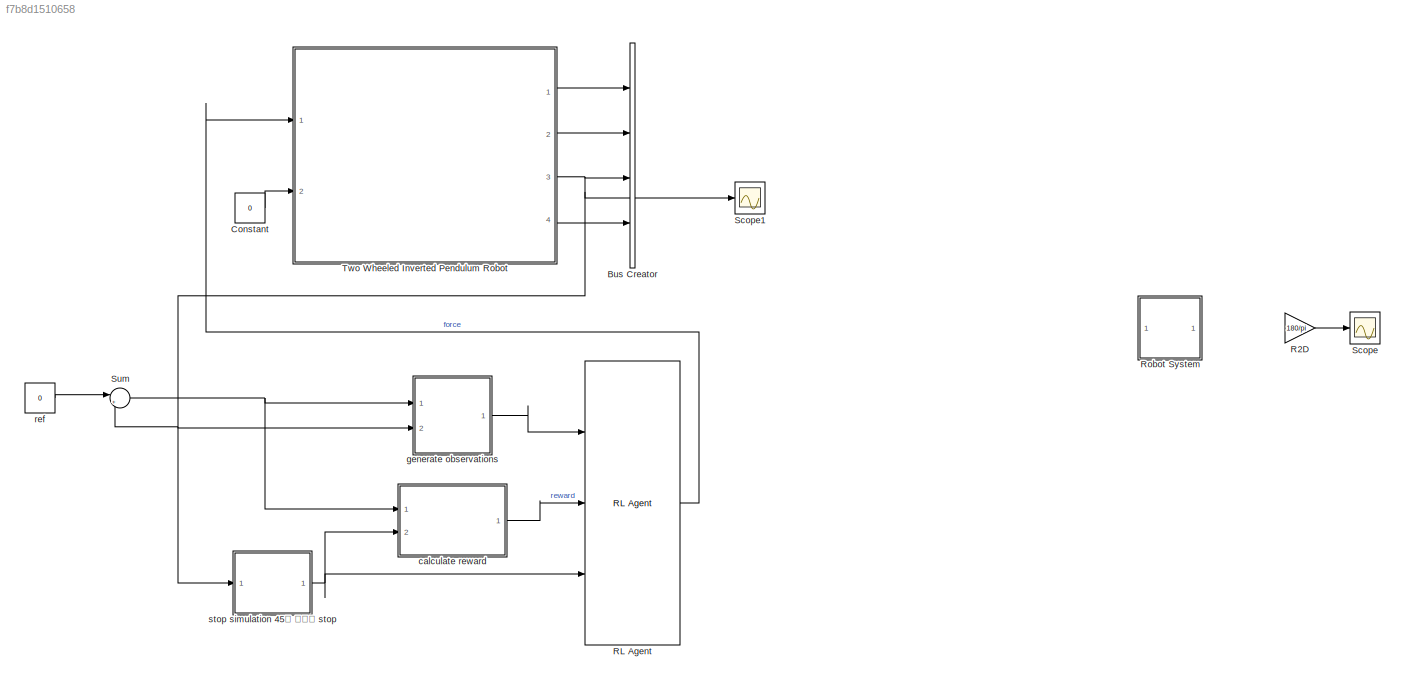
MODEL slx_f7b8d1510658
KIND model
CONFIG AbsTol = auto
CONFIG EnableMultiTasking = off
CONFIG FixedStep = auto
CONFIG MaxStep = auto
CONFIG MinStep = auto
CONFIG RelTol = 1e-3
CONFIG SampleTimeConstraint = Unconstrained
CONFIG Solver = VariableStepAuto
CONFIG SolverName = VariableStepAuto
CONFIG StartTime = 0.0
CONFIG StopTime = 10
BLOCK [BusCreator] Bus Creator
  DisplayOption = bar
  InheritFromInputs = on
  Inputs = 4
  Ports = [4, 1]
BLOCK [Constant] Constant
  Value = 0
BLOCK [Gain] R2D
  Commented = on
  Gain = 180/pi
BLOCK [Reference] RL Agent  REF=rllib/RL Agent
  Ports = [3, 1]
  SourceBlock = rllib/RL Agent
  SourceProductBaseCode = RL
  SourceType = RL Agent
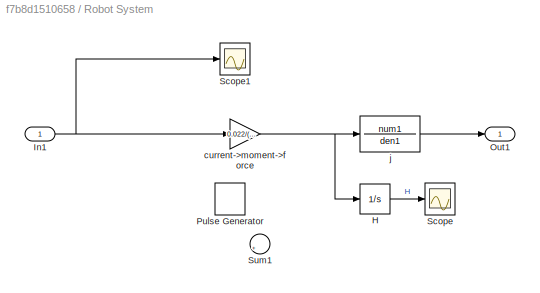
BLOCK [SubSystem] Robot System
  Commented = on
  Ports = [1, 1]
  RequestExecContextInheritance = off
BLOCK [Integrator] Robot System/H
  Commented = on
  LimitOutput = on
  LowerSaturationLimit = 0
  Ports = [1, 1]
BLOCK [Inport] Robot System/In1
BLOCK [Outport] Robot System/Out1
BLOCK [DiscretePulseGenerator] Robot System/Pulse Generator
  Amplitude = 10
  Commented = on
  Period = 10
  PhaseDelay = 0.1
  Ports = [0, 1]
  PulseType = Time based
  PulseWidth = 0.1
BLOCK [Scope] Robot System/Scope
  Commented = on
  Floating = off
  NumInputPorts = 1
  Ports = [1]
  ScopeSpecificationString = Simulink.scopes.TimeScopeBlockCfg('CurrentConfiguration', extmgr.ConfigurationSet(extmgr.Configuration('Core','General UI',true),extmgr.Configuration('Core','Source UI',true),extmgr.Configuration('Sources','WiredSimulink',true,'DataLoggingVariableName','ScopeData1'),extmgr.Configuration('Visuals','Time Domain',true),extmgr.Configuration('Tools','Plot Navigation',true),extmgr.Configuration('Tools',...<+40ch>
BLOCK [Scope] Robot System/Scope1
  Floating = off
  NumInputPorts = 1
  Ports = [1]
  ScopeSpecificationString = Simulink.scopes.TimeScopeBlockCfg('CurrentConfiguration', extmgr.ConfigurationSet(extmgr.Configuration('Core','General UI',true),extmgr.Configuration('Core','Source UI',true),extmgr.Configuration('Sources','WiredSimulink',true,'DataLoggingVariableName','ScopeData1'),extmgr.Configuration('Visuals','Time Domain',true,'SerializedDisplays',{struct('MinYLimReal','-1.5476','MaxYLimReal','0.1948','YLabel...<+1400ch>
BLOCK [Sum] Robot System/Sum1
  Commented = on
  Inputs = |++
  Ports = [2, 1]
BLOCK [Gain] Robot System/current->moment->force
  Gain = 0.022/(1.2*0.04)
BLOCK [TransferFcn] Robot System/j
  Denominator = den1
  Numerator = num1
BLOCK [Scope] Scope
  Commented = on
  Floating = off
  NumInputPorts = 1
  Ports = [1]
  ScopeSpecificationString = Simulink.scopes.TimeScopeBlockCfg('CurrentConfiguration', extmgr.ConfigurationSet(extmgr.Configuration('Core','General UI',true),extmgr.Configuration('Core','Source UI',true),extmgr.Configuration('Sources','WiredSimulink',true),extmgr.Configuration('Visuals','Time Domain',true,'SerializedDisplays',{struct('MinYLimReal','-234.00508','MaxYLimReal','26.00056','YLabelReal','','MinYLimMag',' 0.00000','...<+1412ch>
BLOCK [Scope] Scope1
  Floating = off
  NumInputPorts = 1
  Ports = [1]
  ScopeSpecificationString = Simulink.scopes.TimeScopeBlockCfg('CurrentConfiguration', extmgr.ConfigurationSet(extmgr.Configuration('Core','General UI',true),extmgr.Configuration('Core','Source UI',true),extmgr.Configuration('Sources','WiredSimulink',true,'DataLoggingVariableName','ScopeData1'),extmgr.Configuration('Visuals','Time Domain',true,'SerializedDisplays',{struct('MinYLimReal','-1.42256','MaxYLimReal','12.80307','YLa...<+1456ch>
BLOCK [Sum] Sum
  Inputs = |+-
  Ports = [2, 1]
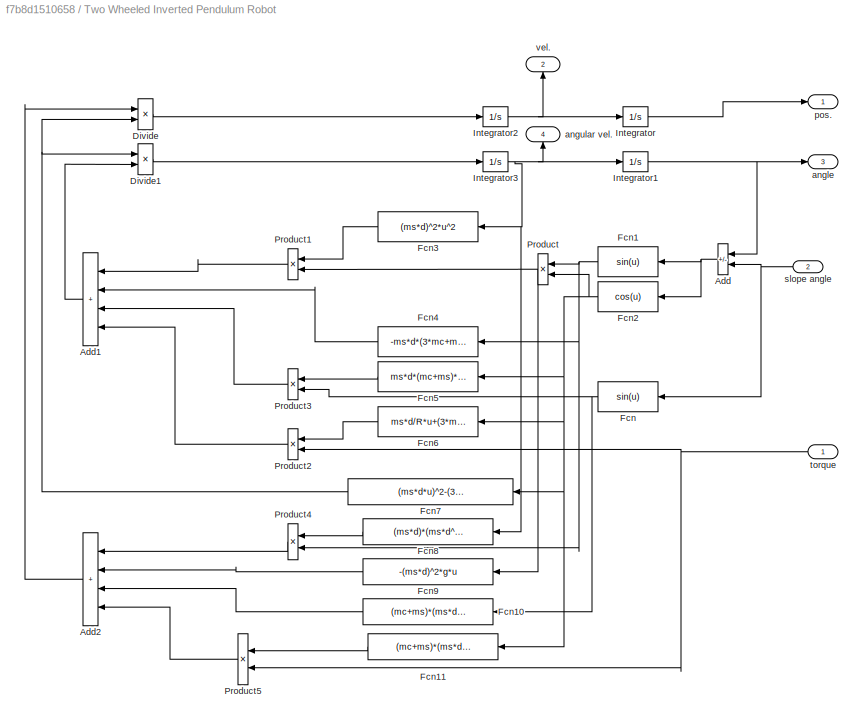
BLOCK [SubSystem] Two Wheeled Inverted Pendulum Robot
  Ports = [2, 4]
  RequestExecContextInheritance = off
BLOCK [Sum] Two Wheeled Inverted Pendulum Robot/Add
  IconShape = rectangular
  Inputs = +-
  Ports = [2, 1]
BLOCK [Sum] Two Wheeled Inverted Pendulum Robot/Add1
  IconShape = rectangular
  Inputs = ++++
  NameLocation = top
  Ports = [4, 1]
BLOCK [Sum] Two Wheeled Inverted Pendulum Robot/Add2
  IconShape = rectangular
  Inputs = ++++
  NameLocation = top
  Ports = [4, 1]
BLOCK [Product] Two Wheeled Inverted Pendulum Robot/Divide
  Inputs = */
  Ports = [2, 1]
BLOCK [Product] Two Wheeled Inverted Pendulum Robot/Divide1
  Inputs = /*
  Ports = [2, 1]
BLOCK [Fcn] Two Wheeled Inverted Pendulum Robot/Fcn
  Expr = sin(u)
  NameLocation = top
BLOCK [Fcn] Two Wheeled Inverted Pendulum Robot/Fcn1
  Expr = sin(u)
  NameLocation = top
BLOCK [Fcn] Two Wheeled Inverted Pendulum Robot/Fcn10
  Expr = (mc+ms)*(ms*d^2+I3)*g*u
  NameLocation = top
BLOCK [Fcn] Two Wheeled Inverted Pendulum Robot/Fcn11
  Expr = (mc+ms)*(ms*d^2+I3)*g*u
  NameLocation = top
BLOCK [Fcn] Two Wheeled Inverted Pendulum Robot/Fcn2
  Expr = cos(u)
  NameLocation = top
BLOCK [Fcn] Two Wheeled Inverted Pendulum Robot/Fcn3
  Expr = (ms*d)^2*u^2
  NameLocation = top
BLOCK [Fcn] Two Wheeled Inverted Pendulum Robot/Fcn4
  Expr = -ms*d*(3*mc+ms)*g*u
  NameLocation = top
BLOCK [Fcn] Two Wheeled Inverted Pendulum Robot/Fcn5
  Expr = ms*d*(mc+ms)*g*u
  NameLocation = top
BLOCK [Fcn] Two Wheeled Inverted Pendulum Robot/Fcn6
  Expr = ms*d/R*u+(3*mc+ms)
  NameLocation = top
BLOCK [Fcn] Two Wheeled Inverted Pendulum Robot/Fcn7
  Expr = (ms*d*u)^2-(3*mc+ms)*(ms*d^2+I3)
  NameLocation = top
BLOCK [Fcn] Two Wheeled Inverted Pendulum Robot/Fcn8
  Expr = (ms*d)*(ms*d^2+I3)*u^2
  NameLocation = top
BLOCK [Fcn] Two Wheeled Inverted Pendulum Robot/Fcn9
  Expr = -(ms*d)^2*g*u
  NameLocation = top
BLOCK [Integrator] Two Wheeled Inverted Pendulum Robot/Integrator
  Ports = [1, 1]
BLOCK [Integrator] Two Wheeled Inverted Pendulum Robot/Integrator1
  Ports = [1, 1]
BLOCK [Integrator] Two Wheeled Inverted Pendulum Robot/Integrator2
  Ports = [1, 1]
BLOCK [Integrator] Two Wheeled Inverted Pendulum Robot/Integrator3
  Ports = [1, 1]
BLOCK [Product] Two Wheeled Inverted Pendulum Robot/Product
  NameLocation = top
  Ports = [2, 1]
BLOCK [Product] Two Wheeled Inverted Pendulum Robot/Product1
  NameLocation = top
  Ports = [2, 1]
BLOCK [Product] Two Wheeled Inverted Pendulum Robot/Product2
  NameLocation = top
  Ports = [2, 1]
BLOCK [Product] Two Wheeled Inverted Pendulum Robot/Product3
  NameLocation = top
  Ports = [2, 1]
BLOCK [Product] Two Wheeled Inverted Pendulum Robot/Product4
  NameLocation = top
  Ports = [2, 1]
BLOCK [Product] Two Wheeled Inverted Pendulum Robot/Product5
  NameLocation = top
  Ports = [2, 1]
BLOCK [Outport] Two Wheeled Inverted Pendulum Robot/angle
  Port = 3
BLOCK [Outport] Two Wheeled Inverted Pendulum Robot/angular vel.
  NameLocation = right
  Port = 4
BLOCK [Outport] Two Wheeled Inverted Pendulum Robot/pos.
BLOCK [Inport] Two Wheeled Inverted Pendulum Robot/slope angle
  Port = 2
BLOCK [Inport] Two Wheeled Inverted Pendulum Robot/torque
BLOCK [Outport] Two Wheeled Inverted Pendulum Robot/vel.
  NameLocation = right
  Port = 2
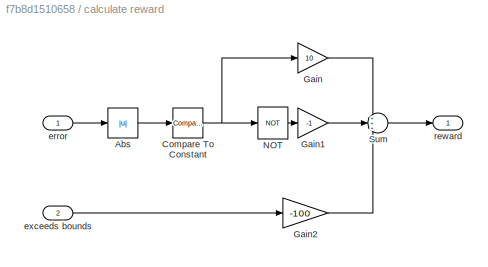
BLOCK [SubSystem] calculate reward
  Ports = [2, 1]
  RequestExecContextInheritance = off
BLOCK [Abs] calculate reward/Abs
  SaturateOnIntegerOverflow = off
BLOCK [Reference] calculate reward/Compare To Constant  REF=simulink/Logic and Bit
Operations/Compare
To Constant
  Ports = [1, 1]
  SourceBlock = simulink/Logic and Bit\nOperations/Compare\nTo Constant
  SourceProductBaseCode = SL
  SourceType = Compare To Constant
BLOCK [Gain] calculate reward/Gain
  Gain = 10
BLOCK [Gain] calculate reward/Gain1
  Gain = -1
BLOCK [Gain] calculate reward/Gain2
  Gain = -100
BLOCK [Logic] calculate reward/NOT
  AllPortsSameDT = off
  IconShape = distinctive
  Operator = NOT
  OutDataTypeStr = boolean
  Ports = [1, 1]
BLOCK [Sum] calculate reward/Sum
  Inputs = +++
  OutDataTypeStr = double
  Ports = [3, 1]
BLOCK [Inport] calculate reward/error
BLOCK [Inport] calculate reward/exceeds bounds
  Port = 2
BLOCK [Outport] calculate reward/reward
  VectorParamsAs1DForOutWhenUnconnected = off
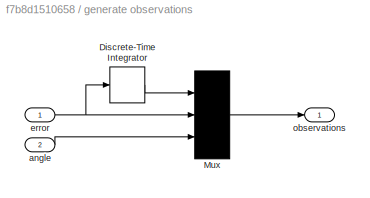
BLOCK [SubSystem] generate observations
  Ports = [2, 1]
  RequestExecContextInheritance = off
BLOCK [DiscreteIntegrator] generate observations/Discrete-Time Integrator
  ICPrevOutput = DiscIntNeverNeededParam
  ICPrevScaledInput = DiscIntNeverNeededParam
  InitialConditionSetting = Auto
  Ports = [1, 1]
  SampleTime = Ts
BLOCK [Mux] generate observations/Mux
  DisplayOption = bar
  Inputs = 3
  Ports = [3, 1]
BLOCK [Inport] generate observations/angle
  Port = 2
BLOCK [Inport] generate observations/error
BLOCK [Outport] generate observations/observations
  VectorParamsAs1DForOutWhenUnconnected = off
BLOCK [Constant] ref
  Value = 0
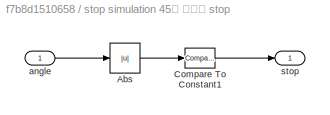
BLOCK [SubSystem] stop simulation 45도 넘으면 stop
  Ports = [1, 1]
  RequestExecContextInheritance = off
BLOCK [Abs] stop simulation 45도 넘으면 stop/Abs
  SaturateOnIntegerOverflow = off
BLOCK [Reference] stop simulation 45도 넘으면 stop/Compare To Constant1  REF=simulink/Logic and Bit
Operations/Compare
To Constant
  Ports = [1, 1]
  SourceBlock = simulink/Logic and Bit\nOperations/Compare\nTo Constant
  SourceProductBaseCode = SL
  SourceType = Compare To Constant
BLOCK [Inport] stop simulation 45도 넘으면 stop/angle
BLOCK [Outport] stop simulation 45도 넘으면 stop/stop
  VectorParamsAs1DForOutWhenUnconnected = off
LINE Constant:1 -> Two Wheeled Inverted Pendulum Robot:2
LINE R2D:1 -> Scope:1
LINE RL Agent:1 -> Two Wheeled Inverted Pendulum Robot:1
LINE Robot System/H:1 -> Robot System/Scope:1
NET Robot System/In1:1 -> Robot System/Scope1:1, Robot System/current->moment->force:1
NET Robot System/current->moment->force:1 -> Robot System/H:1, Robot System/j:1
LINE Robot System/j:1 -> Robot System/Out1:1
NET Sum:1 -> calculate reward:1, generate observations:1
LINE Two Wheeled Inverted Pendulum Robot/Add1:1 -> Two Wheeled Inverted Pendulum Robot/Divide1:2
LINE Two Wheeled Inverted Pendulum Robot/Add2:1 -> Two Wheeled Inverted Pendulum Robot/Divide:1
NET Two Wheeled Inverted Pendulum Robot/Add:1 -> Two Wheeled Inverted Pendulum Robot/Fcn1:1, Two Wheeled Inverted Pendulum Robot/Fcn2:1
LINE Two Wheeled Inverted Pendulum Robot/Divide1:1 -> Two Wheeled Inverted Pendulum Robot/Integrator3:1
LINE Two Wheeled Inverted Pendulum Robot/Divide:1 -> Two Wheeled Inverted Pendulum Robot/Integrator2:1
LINE Two Wheeled Inverted Pendulum Robot/Fcn10:1 -> Two Wheeled Inverted Pendulum Robot/Add2:3
LINE Two Wheeled Inverted Pendulum Robot/Fcn11:1 -> Two Wheeled Inverted Pendulum Robot/Product5:1
NET Two Wheeled Inverted Pendulum Robot/Fcn1:1 -> Two Wheeled Inverted Pendulum Robot/Fcn4:1, Two Wheeled Inverted Pendulum Robot/Product4:2, Two Wheeled Inverted Pendulum Robot/Product:1
NET Two Wheeled Inverted Pendulum Robot/Fcn2:1 -> Two Wheeled Inverted Pendulum Robot/Fcn11:1, Two Wheeled Inverted Pendulum Robot/Fcn5:1, Two Wheeled Inverted Pendulum Robot/Fcn6:1, Two Wheeled Inverted Pendulum Robot/Fcn7:1, Two Wheeled Inverted Pendulum Robot/Product:2
LINE Two Wheeled Inverted Pendulum Robot/Fcn3:1 -> Two Wheeled Inverted Pendulum Robot/Product1:1
LINE Two Wheeled Inverted Pendulum Robot/Fcn4:1 -> Two Wheeled Inverted Pendulum Robot/Add1:2
LINE Two Wheeled Inverted Pendulum Robot/Fcn5:1 -> Two Wheeled Inverted Pendulum Robot/Product3:1
LINE Two Wheeled Inverted Pendulum Robot/Fcn6:1 -> Two Wheeled Inverted Pendulum Robot/Product2:1
NET Two Wheeled Inverted Pendulum Robot/Fcn7:1 -> Two Wheeled Inverted Pendulum Robot/Divide1:1, Two Wheeled Inverted Pendulum Robot/Divide:2
LINE Two Wheeled Inverted Pendulum Robot/Fcn8:1 -> Two Wheeled Inverted Pendulum Robot/Product4:1
LINE Two Wheeled Inverted Pendulum Robot/Fcn9:1 -> Two Wheeled Inverted Pendulum Robot/Add2:2
NET Two Wheeled Inverted Pendulum Robot/Fcn:1 -> Two Wheeled Inverted Pendulum Robot/Fcn10:1, Two Wheeled Inverted Pendulum Robot/Product3:2
NET Two Wheeled Inverted Pendulum Robot/Integrator1:1 -> Two Wheeled Inverted Pendulum Robot/Add:1, Two Wheeled Inverted Pendulum Robot/angle:1
NET Two Wheeled Inverted Pendulum Robot/Integrator2:1 -> Two Wheeled Inverted Pendulum Robot/Integrator:1, Two Wheeled Inverted Pendulum Robot/vel.:1
NET Two Wheeled Inverted Pendulum Robot/Integrator3:1 -> Two Wheeled Inverted Pendulum Robot/Fcn3:1, Two Wheeled Inverted Pendulum Robot/Fcn8:1, Two Wheeled Inverted Pendulum Robot/Integrator1:1, Two Wheeled Inverted Pendulum Robot/angular vel.:1
LINE Two Wheeled Inverted Pendulum Robot/Integrator:1 -> Two Wheeled Inverted Pendulum Robot/pos.:1
LINE Two Wheeled Inverted Pendulum Robot/Product1:1 -> Two Wheeled Inverted Pendulum Robot/Add1:1
LINE Two Wheeled Inverted Pendulum Robot/Product2:1 -> Two Wheeled Inverted Pendulum Robot/Add1:4
LINE Two Wheeled Inverted Pendulum Robot/Product3:1 -> Two Wheeled Inverted Pendulum Robot/Add1:3
LINE Two Wheeled Inverted Pendulum Robot/Product4:1 -> Two Wheeled Inverted Pendulum Robot/Add2:1
LINE Two Wheeled Inverted Pendulum Robot/Product5:1 -> Two Wheeled Inverted Pendulum Robot/Add2:4
NET Two Wheeled Inverted Pendulum Robot/Product:1 -> Two Wheeled Inverted Pendulum Robot/Fcn9:1, Two Wheeled Inverted Pendulum Robot/Product1:2
NET Two Wheeled Inverted Pendulum Robot/slope angle:1 -> Two Wheeled Inverted Pendulum Robot/Add:2, Two Wheeled Inverted Pendulum Robot/Fcn:1
NET Two Wheeled Inverted Pendulum Robot/torque:1 -> Two Wheeled Inverted Pendulum Robot/Product2:2, Two Wheeled Inverted Pendulum Robot/Product5:2
LINE Two Wheeled Inverted Pendulum Robot:1 -> Bus Creator:1
LINE Two Wheeled Inverted Pendulum Robot:2 -> Bus Creator:2
NET Two Wheeled Inverted Pendulum Robot:3 -> Bus Creator:3, Scope1:1, Sum:2, generate observations:2, stop simulation 45도 넘으면 stop:1
LINE Two Wheeled Inverted Pendulum Robot:4 -> Bus Creator:4
LINE calculate reward/Abs:1 -> calculate reward/Compare To Constant:1
NET calculate reward/Compare To Constant:1 -> calculate reward/Gain:1, calculate reward/NOT:1
LINE calculate reward/Gain1:1 -> calculate reward/Sum:2
LINE calculate reward/Gain2:1 -> calculate reward/Sum:3
LINE calculate reward/Gain:1 -> calculate reward/Sum:1
LINE calculate reward/NOT:1 -> calculate reward/Gain1:1
LINE calculate reward/Sum:1 -> calculate reward/reward:1
LINE calculate reward/error:1 -> calculate reward/Abs:1
LINE calculate reward/exceeds bounds:1 -> calculate reward/Gain2:1
LINE calculate reward:1 -> RL Agent:2
LINE generate observations/Discrete-Time Integrator:1 -> generate observations/Mux:1
LINE generate observations/Mux:1 -> generate observations/observations:1
LINE generate observations/angle:1 -> generate observations/Mux:3
NET generate observations/error:1 -> generate observations/Discrete-Time Integrator:1, generate observations/Mux:2
LINE generate observations:1 -> RL Agent:1
LINE ref:1 -> Sum:1
LINE stop simulation 45도 넘으면 stop/Abs:1 -> stop simulation 45도 넘으면 stop/Compare To Constant1:1
LINE stop simulation 45도 넘으면 stop/Compare To Constant1:1 -> stop simulation 45도 넘으면 stop/stop:1
LINE stop simulation 45도 넘으면 stop/angle:1 -> stop simulation 45도 넘으면 stop/Abs:1
NET stop simulation 45도 넘으면 stop:1 -> RL Agent:3, calculate reward:2
note: NET lines group one-source signal fan-out (src -> all destinations, sorted); 1:1 wires keep LINE
